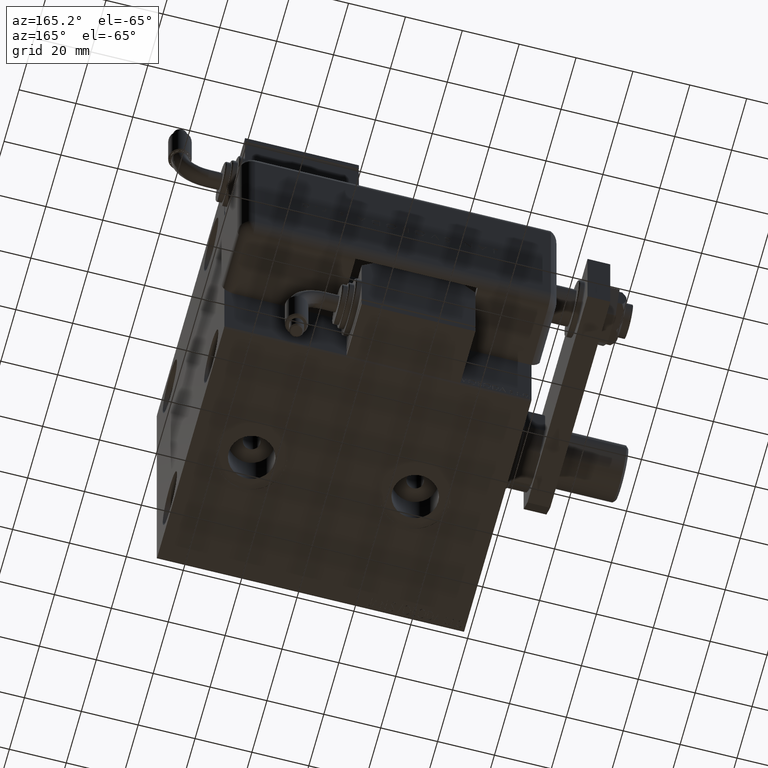
[diagram: clean part render]
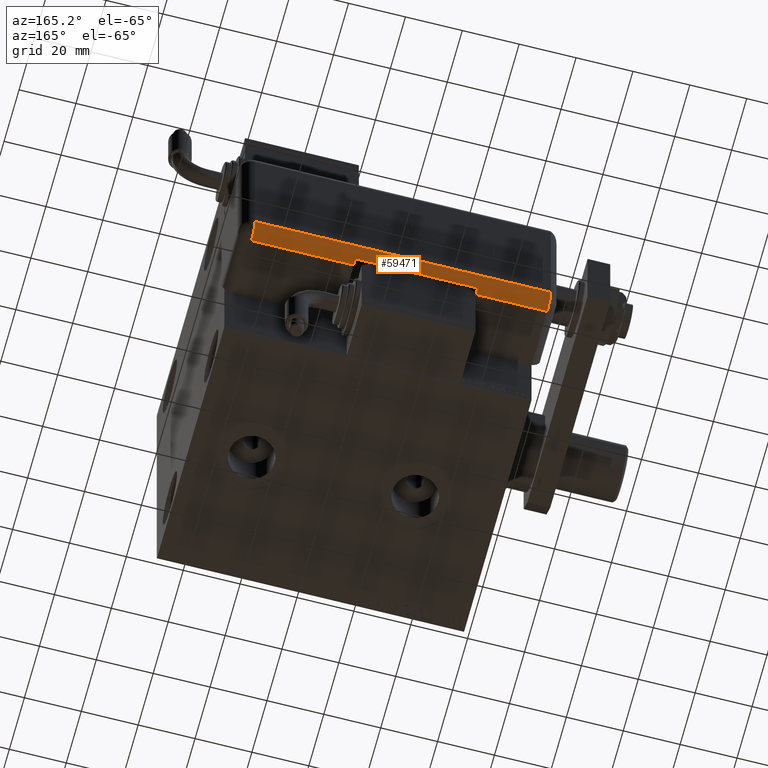
[diagram: same view with one face highlighted and labeled with its STEP entity id]
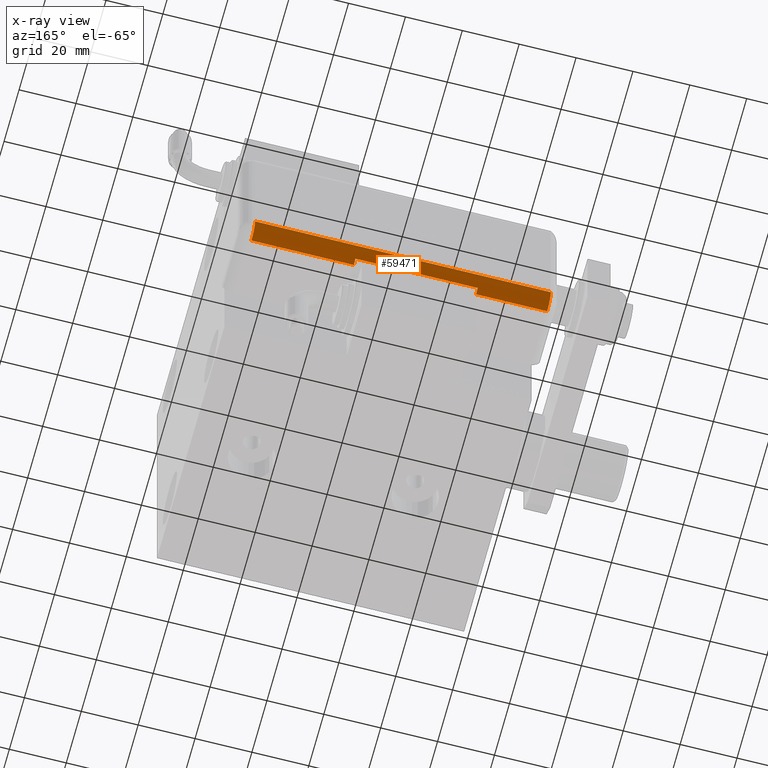
[diagram: x-ray of the same camera — body ghosted, the highlighted face saturated]
A machine part, auxiliary view. The second image highlights one B-rep face of the part: STEP entity #59471.
The next image is the same camera in x-ray: the body ghosted, the highlighted face saturated — about 0% of this face is hidden behind the body in this view.
In plain terms, the highlighted cylindrical surface (edge-blend (fillet) strip) has radius 5 mm, axis along (1, -0, -0).
Its self-contained STEP definition (entity closure, byte-faithful):
#303 = ORIENTED_EDGE ( 'NONE', *, *, #45598, .F. ) ;
#545 = DIRECTION ( 'NONE',  ( -0.000000000000000000, -0.000000000000000000, 1.000000000000000000 ) ) ;
#639 = DIRECTION ( 'NONE',  ( 0.000000000000000000, 0.000000000000000000, -1.000000000000000000 ) ) ;
#1872 = ORIENTED_EDGE ( 'NONE', *, *, #25148, .F. ) ;
#2066 = VECTOR ( 'NONE', #639, 1000.000000000000000 ) ;
#2838 = CARTESIAN_POINT ( 'NONE',  ( -23.99999999999999645, 25.79999999999998295, 5.000000000000004441 ) ) ;
#4103 = CIRCLE ( 'NONE', #40103, 5.000000000000000888 ) ;
#4571 = CARTESIAN_POINT ( 'NONE',  ( -28.99999999999999645, 20.79999999999998295, 41.00000000000000711 ) ) ;
#4854 = VERTEX_POINT ( 'NONE', #23750 ) ;
#5146 = ORIENTED_EDGE ( 'NONE', *, *, #47730, .F. ) ;
#5337 = DIRECTION ( 'NONE',  ( 0.000000000000000000, -0.000000000000000000, -1.000000000000000000 ) ) ;
#5430 = LINE ( 'NONE', #29495, #8856 ) ;
#6218 = CYLINDRICAL_SURFACE ( 'NONE', #57051, 5.000000000000000888 ) ;
#6572 = DIRECTION ( 'NONE',  ( 1.000000000000000000, 0.000000000000000000, 0.000000000000000000 ) ) ;
#7050 = EDGE_LOOP ( 'NONE', ( #303, #10633, #5146, #41538, #21687, #1872, #58363, #8262 ) ) ;
#7851 = CARTESIAN_POINT ( 'NONE',  ( -28.48998886412872267, 22.99999999999998934, 84.00000000000000000 ) ) ;
#8262 = ORIENTED_EDGE ( 'NONE', *, *, #46768, .F. ) ;
#8856 = VECTOR ( 'NONE', #48567, 1000.000000000000000 ) ;
#9620 = CARTESIAN_POINT ( 'NONE',  ( -23.99999999999999645, 25.79999999999998295, 109.0000000000000000 ) ) ;
#10633 = ORIENTED_EDGE ( 'NONE', *, *, #40031, .F. ) ;
#12992 = CIRCLE ( 'NONE', #48919, 5.000000000000000888 ) ;
#15000 = CARTESIAN_POINT ( 'NONE',  ( -28.99999999999999645, 20.79999999999998295, 109.0000000000000000 ) ) ;
#15567 = FACE_OUTER_BOUND ( 'NONE', #7050, .T. ) ;
#16342 = VERTEX_POINT ( 'NONE', #4571 ) ;
#16506 = DIRECTION ( 'NONE',  ( 0.000000000000000000, 0.000000000000000000, -1.000000000000000000 ) ) ;
#17277 = CARTESIAN_POINT ( 'NONE',  ( -23.99999999999999645, 20.79999999999998295, 41.00000000000000711 ) ) ;
#17696 = EDGE_CURVE ( 'NONE', #46905, #4854, #5430, .T. ) ;
#18074 = VERTEX_POINT ( 'NONE', #40060 ) ;
#18480 = AXIS2_PLACEMENT_3D ( 'NONE', #39774, #58844, #36617 ) ;
#19499 = CARTESIAN_POINT ( 'NONE',  ( -28.48998886412872267, 22.99999999999998934, 109.0000000000000000 ) ) ;
#21687 = ORIENTED_EDGE ( 'NONE', *, *, #24891, .F. ) ;
#23490 = CIRCLE ( 'NONE', #18480, 5.000000000000000888 ) ;
#23750 = CARTESIAN_POINT ( 'NONE',  ( -28.99999999999999645, 20.79999999999998295, 84.00000000000000000 ) ) ;
#24000 = CARTESIAN_POINT ( 'NONE',  ( -28.99999999999999645, 20.79999999999998295, 5.000000000000004441 ) ) ;
#24091 = LINE ( 'NONE', #15000, #2066 ) ;
#24891 = EDGE_CURVE ( 'NONE', #49645, #46905, #23490, .T. ) ;
#25139 = VERTEX_POINT ( 'NONE', #24000 ) ;
#25148 = EDGE_CURVE ( 'NONE', #27753, #49645, #52451, .T. ) ;
#25582 = CARTESIAN_POINT ( 'NONE',  ( -23.99999999999999645, 20.79999999999998295, 109.0000000000000000 ) ) ;
#25896 = DIRECTION ( 'NONE',  ( -1.000000000000000000, 0.000000000000000000, 0.000000000000000000 ) ) ;
#26360 = DIRECTION ( 'NONE',  ( -0.000000000000000000, -0.000000000000000000, 1.000000000000000000 ) ) ;
#26863 = DIRECTION ( 'NONE',  ( -1.000000000000000000, 0.000000000000000000, 0.000000000000000000 ) ) ;
#27753 = VERTEX_POINT ( 'NONE', #2838 ) ;
#29052 = CIRCLE ( 'NONE', #39014, 5.000000000000000888 ) ;
#29495 = CARTESIAN_POINT ( 'NONE',  ( -28.99999999999999645, 20.79999999999998295, 109.0000000000000000 ) ) ;
#31057 = DIRECTION ( 'NONE',  ( -1.000000000000000000, 4.163336342344336238E-15, 0.000000000000000000 ) ) ;
#36617 = DIRECTION ( 'NONE',  ( -1.000000000000000000, 0.000000000000000000, 0.000000000000000000 ) ) ;
#37189 = DIRECTION ( 'NONE',  ( -0.000000000000000000, -0.000000000000000000, 1.000000000000000000 ) ) ;
#39014 = AXIS2_PLACEMENT_3D ( 'NONE', #53469, #5337, #6572 ) ;
#39519 = DIRECTION ( 'NONE',  ( 0.000000000000000000, 0.000000000000000000, -1.000000000000000000 ) ) ;
#39774 = CARTESIAN_POINT ( 'NONE',  ( -23.99999999999999645, 20.79999999999998295, 109.0000000000000000 ) ) ;
#40031 = EDGE_CURVE ( 'NONE', #61371, #18074, #54195, .T. ) ;
#40060 = CARTESIAN_POINT ( 'NONE',  ( -28.48998886412872267, 22.99999999999998934, 41.00000000000000711 ) ) ;
#40103 = AXIS2_PLACEMENT_3D ( 'NONE', #50628, #37189, #26863 ) ;
#41538 = ORIENTED_EDGE ( 'NONE', *, *, #17696, .F. ) ;
#41880 = CARTESIAN_POINT ( 'NONE',  ( -28.99999999999999645, 20.79999999999998295, 109.0000000000000000 ) ) ;
#45598 = EDGE_CURVE ( 'NONE', #18074, #16342, #12992, .T. ) ;
#46768 = EDGE_CURVE ( 'NONE', #16342, #25139, #24091, .T. ) ;
#46905 = VERTEX_POINT ( 'NONE', #41880 ) ;
#47730 = EDGE_CURVE ( 'NONE', #4854, #61371, #29052, .T. ) ;
#48567 = DIRECTION ( 'NONE',  ( 0.000000000000000000, 0.000000000000000000, -1.000000000000000000 ) ) ;
#48739 = VECTOR ( 'NONE', #39519, 1000.000000000000000 ) ;
#48919 = AXIS2_PLACEMENT_3D ( 'NONE', #17277, #26360, #31057 ) ;
#49645 = VERTEX_POINT ( 'NONE', #59650 ) ;
#50628 = CARTESIAN_POINT ( 'NONE',  ( -23.99999999999999645, 20.79999999999998295, 5.000000000000004441 ) ) ;
#52451 = LINE ( 'NONE', #9620, #53430 ) ;
#53430 = VECTOR ( 'NONE', #545, 1000.000000000000000 ) ;
#53469 = CARTESIAN_POINT ( 'NONE',  ( -23.99999999999999645, 20.79999999999998295, 84.00000000000000000 ) ) ;
#54195 = LINE ( 'NONE', #19499, #48739 ) ;
#57051 = AXIS2_PLACEMENT_3D ( 'NONE', #25582, #16506, #25896 ) ;
#58363 = ORIENTED_EDGE ( 'NONE', *, *, #58689, .T. ) ;
#58689 = EDGE_CURVE ( 'NONE', #27753, #25139, #4103, .T. ) ;
#58844 = DIRECTION ( 'NONE',  ( -0.000000000000000000, -0.000000000000000000, 1.000000000000000000 ) ) ;
#59471 = ADVANCED_FACE ( 'NONE', ( #15567 ), #6218, .T. ) ;
#59650 = CARTESIAN_POINT ( 'NONE',  ( -23.99999999999999645, 25.79999999999998295, 109.0000000000000000 ) ) ;
#61371 = VERTEX_POINT ( 'NONE', #7851 ) ;